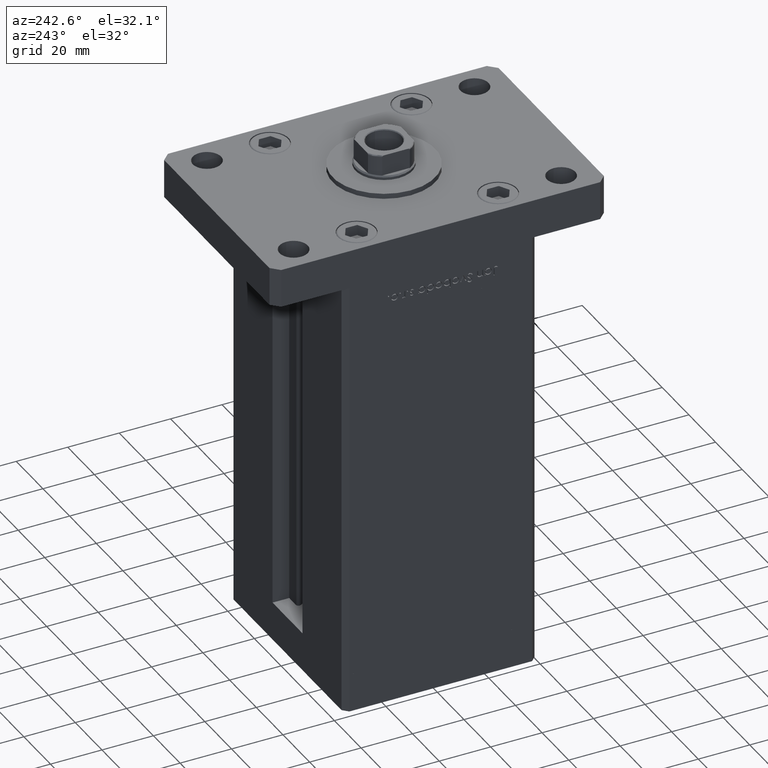
[diagram: clean part render]
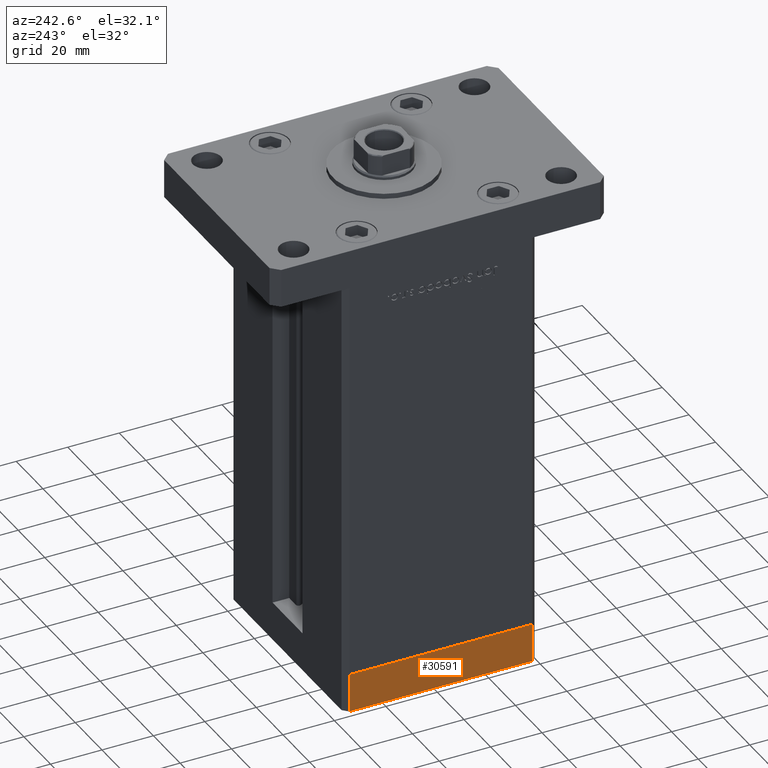
[diagram: same view with one face highlighted and labeled with its STEP entity id]
A machine part, auxiliary view. The second image highlights one B-rep face of the part: STEP entity #30591.
In plain terms, the highlighted planar face has unit normal (-1, 0, 0).
Its self-contained STEP definition (entity closure, byte-faithful):
#487 = EDGE_CURVE ( 'NONE', #3785, #44795, #45202, .T. ) ;
#675 = CARTESIAN_POINT ( 'NONE',  ( 42.50000000000000711, -35.50000000000000000, -15.00000000000000000 ) ) ;
#2703 = ORIENTED_EDGE ( 'NONE', *, *, #44905, .F. ) ;
#3760 = VECTOR ( 'NONE', #44679, 1000.000000000000000 ) ;
#3785 = VERTEX_POINT ( 'NONE', #20398 ) ;
#4756 = VECTOR ( 'NONE', #35152, 1000.000000000000000 ) ;
#5704 = PLANE ( 'NONE',  #5912 ) ;
#5912 = AXIS2_PLACEMENT_3D ( 'NONE', #34160, #26311, #25519 ) ;
#7108 = ORIENTED_EDGE ( 'NONE', *, *, #487, .T. ) ;
#7663 = LINE ( 'NONE', #32581, #18507 ) ;
#14824 = CARTESIAN_POINT ( 'NONE',  ( 42.50000000000000711, -35.50000000000000000, -15.00000000000000000 ) ) ;
#14967 = ORIENTED_EDGE ( 'NONE', *, *, #48294, .T. ) ;
#17589 = VERTEX_POINT ( 'NONE', #51187 ) ;
#17638 = FACE_OUTER_BOUND ( 'NONE', #50648, .T. ) ;
#18507 = VECTOR ( 'NONE', #40461, 1000.000000000000000 ) ;
#20398 = CARTESIAN_POINT ( 'NONE',  ( 42.49999999999992895, 35.50000000000000000, -15.00000000000000000 ) ) ;
#20570 = CARTESIAN_POINT ( 'NONE',  ( 42.50000000000000711, -35.50000000000000000, 0.000000000000000000 ) ) ;
#21283 = ORIENTED_EDGE ( 'NONE', *, *, #51614, .F. ) ;
#23837 = DIRECTION ( 'NONE',  ( -1.172770800660376741E-15, 1.000000000000000000, 0.000000000000000000 ) ) ;
#25344 = VERTEX_POINT ( 'NONE', #675 ) ;
#25519 = DIRECTION ( 'NONE',  ( -1.172770800660376741E-15, 1.000000000000000000, 0.000000000000000000 ) ) ;
#26311 = DIRECTION ( 'NONE',  ( 1.000000000000000000, 1.172770800660376741E-15, -0.000000000000000000 ) ) ;
#30451 = CARTESIAN_POINT ( 'NONE',  ( 42.49999999999992895, 35.50000000000000000, 0.000000000000000000 ) ) ;
#30591 = ADVANCED_FACE ( 'NONE', ( #17638 ), #5704, .T. ) ;
#32581 = CARTESIAN_POINT ( 'NONE',  ( 42.50000000000000711, -35.50000000000000000, -15.00000000000000000 ) ) ;
#34160 = CARTESIAN_POINT ( 'NONE',  ( 42.50000000000000711, -35.50000000000000000, -15.00000000000000000 ) ) ;
#35152 = DIRECTION ( 'NONE',  ( -1.172770800660376741E-15, 1.000000000000000000, 0.000000000000000000 ) ) ;
#40461 = DIRECTION ( 'NONE',  ( 0.000000000000000000, 0.000000000000000000, 1.000000000000000000 ) ) ;
#43565 = LINE ( 'NONE', #14824, #4756 ) ;
#44679 = DIRECTION ( 'NONE',  ( 0.000000000000000000, 0.000000000000000000, 1.000000000000000000 ) ) ;
#44795 = VERTEX_POINT ( 'NONE', #30451 ) ;
#44905 = EDGE_CURVE ( 'NONE', #25344, #17589, #7663, .T. ) ;
#44943 = CARTESIAN_POINT ( 'NONE',  ( 42.49999999999992895, 35.50000000000000000, -15.00000000000000000 ) ) ;
#45202 = LINE ( 'NONE', #44943, #3760 ) ;
#45424 = VECTOR ( 'NONE', #23837, 1000.000000000000000 ) ;
#48294 = EDGE_CURVE ( 'NONE', #25344, #3785, #43565, .T. ) ;
#50648 = EDGE_LOOP ( 'NONE', ( #21283, #2703, #14967, #7108 ) ) ;
#51187 = CARTESIAN_POINT ( 'NONE',  ( 42.50000000000000711, -35.50000000000000000, 0.000000000000000000 ) ) ;
#51614 = EDGE_CURVE ( 'NONE', #17589, #44795, #52845, .T. ) ;
#52845 = LINE ( 'NONE', #20570, #45424 ) ;